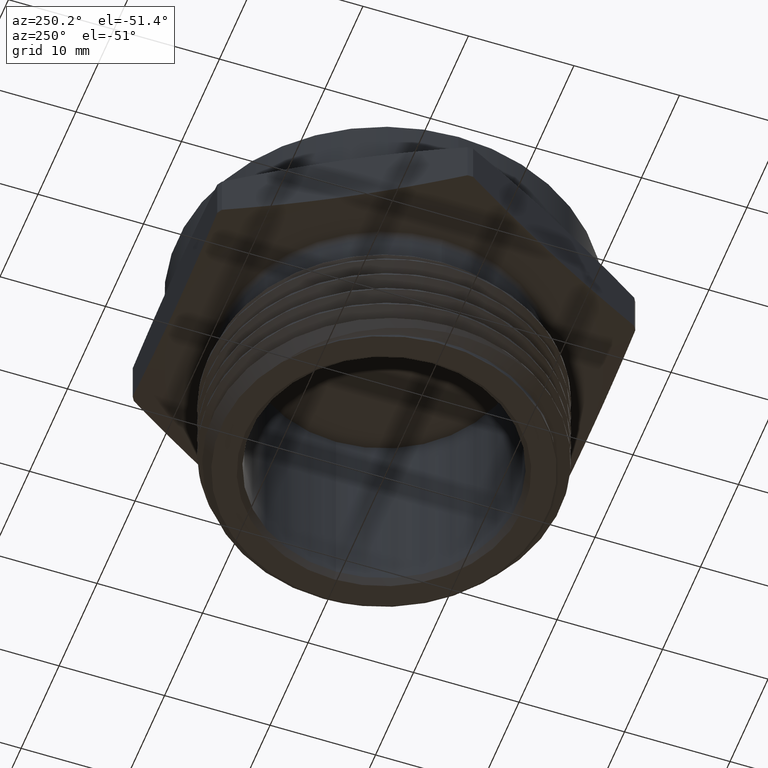
[diagram: clean part render]
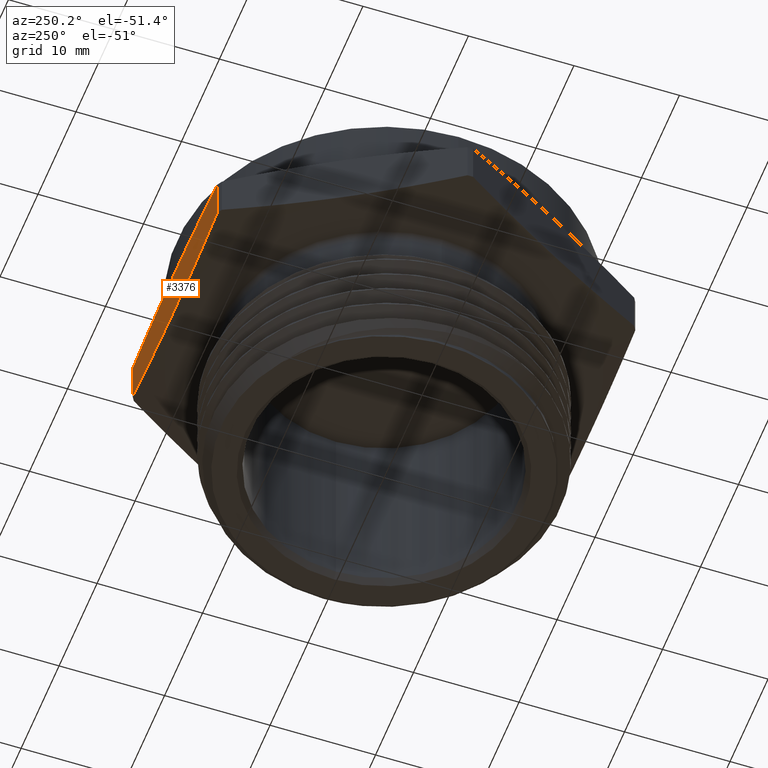
[diagram: same view with one face highlighted and labeled with its STEP entity id]
A machine part, auxiliary view. The second image highlights one B-rep face of the part: STEP entity #3376.
In plain terms, the highlighted planar face has unit normal (-0, -1, 0).
Its self-contained STEP definition (entity closure, byte-faithful):
#702 = CARTESIAN_POINT ( 'NONE',  ( -0.4382099987001327700, 0.7799999999999999200, 5.366524722624820400E-017 ) ) ;
#711 = DIRECTION ( 'NONE',  ( -1.224646799147349800E-016, -0.0000000000000000000, -1.000000000000000000 ) ) ;
#712 = CARTESIAN_POINT ( 'NONE',  ( 0.4382099987001330500, 0.7799999999999999200, -5.366524722624820400E-017 ) ) ;
#714 = DIRECTION ( 'NONE',  ( 1.224646799147349800E-016, 0.0000000000000000000, 1.000000000000000000 ) ) ;
#936 = EDGE_LOOP ( 'NONE', ( #1095, #1096, #1097, #1098 ) ) ;
#1095 = ORIENTED_EDGE ( 'NONE', *, *, #1282, .F. ) ;
#1096 = ORIENTED_EDGE ( 'NONE', *, *, #1554, .F. ) ;
#1097 = ORIENTED_EDGE ( 'NONE', *, *, #1283, .F. ) ;
#1098 = ORIENTED_EDGE ( 'NONE', *, *, #1544, .F. ) ;
#1226 = B_SPLINE_CURVE_WITH_KNOTS ( 'NONE', 3,
 ( #2809, #2804, #2805, #2810, #2811, #2812, #2813, #2814, #2815, #2816 ),
 .UNSPECIFIED., .F., .F.,
 ( 4, 2, 2, 2, 4 ),
 ( 0.01929389795571095900, 0.02488130289523789900, 0.03046870783476484200, 0.03605611277429178500, 0.04164351771381872400 ),
 .UNSPECIFIED. ) ;
#1282 = EDGE_CURVE ( 'NONE', #3316, #1590, #2433, .T. ) ;
#1283 = EDGE_CURVE ( 'NONE', #1638, #1629, #2437, .T. ) ;
#1430 = AXIS2_PLACEMENT_3D ( 'NONE', #2075, #2080, #2081 ) ;
#1469 = B_SPLINE_CURVE_WITH_KNOTS ( 'NONE', 3,
 ( #2856, #2851, #2852, #2857, #2858, #2859, #2860, #2861, #2862, #2863 ),
 .UNSPECIFIED., .F., .F.,
 ( 4, 2, 2, 2, 4 ),
 ( 0.04354443558514912300, 0.04912637471211399300, 0.05470831383907886300, 0.06029025296604372700, 0.06587219209300859700 ),
 .UNSPECIFIED. ) ;
#1544 = EDGE_CURVE ( 'NONE', #1590, #1638, #1226, .T. ) ;
#1554 = EDGE_CURVE ( 'NONE', #1629, #3316, #1469, .T. ) ;
#1590 = VERTEX_POINT ( 'NONE', #2209 ) ;
#1629 = VERTEX_POINT ( 'NONE', #2245 ) ;
#1638 = VERTEX_POINT ( 'NONE', #2252 ) ;
#2074 = PLANE ( 'NONE',  #1430 ) ;
#2075 = CARTESIAN_POINT ( 'NONE',  ( 0.4503332099679080400, 0.7799999999999999200, 0.2099999999999999900 ) ) ;
#2080 = DIRECTION ( 'NONE',  ( -1.516570360122308400E-016, -1.000000000000000000, 0.0000000000000000000 ) ) ;
#2081 = DIRECTION ( 'NONE',  ( 1.000000000000000000, -1.516570360122308400E-016, 0.0000000000000000000 ) ) ;
#2209 = CARTESIAN_POINT ( 'NONE',  ( -0.4382099987001327700, 0.7799999999999999200, 0.02596727417309329200 ) ) ;
#2245 = CARTESIAN_POINT ( 'NONE',  ( 0.4382099987001329400, 0.7799999999999996900, 0.1840327258269069100 ) ) ;
#2252 = CARTESIAN_POINT ( 'NONE',  ( 0.4382099987001330500, 0.7799999999999999200, 0.02596727417309312500 ) ) ;
#2305 = CARTESIAN_POINT ( 'NONE',  ( -0.4382099987001327700, 0.7799999999999999200, 0.1840327258269070500 ) ) ;
#2433 = LINE ( 'NONE', #702, #2438 ) ;
#2437 = LINE ( 'NONE', #712, #2440 ) ;
#2438 = VECTOR ( 'NONE', #711, 39.37007874015748100 ) ;
#2440 = VECTOR ( 'NONE', #714, 39.37007874015748100 ) ;
#2645 = FACE_OUTER_BOUND ( 'NONE', #936, .T. ) ;
#2804 = CARTESIAN_POINT ( 'NONE',  ( -0.3652255891295629900, 0.7799999999999999200, 0.01836881103430091900 ) ) ;
#2805 = CARTESIAN_POINT ( 'NONE',  ( -0.2919696020277488500, 0.7800000000000001400, 0.01219468645310546300 ) ) ;
#2809 = CARTESIAN_POINT ( 'NONE',  ( -0.4382099987001327700, 0.7799999999999999200, 0.02596727417309329200 ) ) ;
#2810 = CARTESIAN_POINT ( 'NONE',  ( -0.1456834458092452800, 0.7799999999999999200, 0.003795611600883781100 ) ) ;
#2811 = CARTESIAN_POINT ( 'NONE',  ( -0.07258498959213809100, 0.7799999999999999200, 0.001584973661191292600 ) ) ;
#2812 = CARTESIAN_POINT ( 'NONE',  ( 0.07351231529379935500, 0.7799999999999999200, 0.001603433348595100100 ) ) ;
#2813 = CARTESIAN_POINT ( 'NONE',  ( 0.1465111793437917900, 0.7799999999999999200, 0.003831845402220127800 ) ) ;
#2814 = CARTESIAN_POINT ( 'NONE',  ( 0.2924204378380557700, 0.7799999999999999200, 0.01223196157811731900 ) ) ;
#2815 = CARTESIAN_POINT ( 'NONE',  ( 0.3653313671894616300, 0.7799999999999999200, 0.01837982366965344000 ) ) ;
#2816 = CARTESIAN_POINT ( 'NONE',  ( 0.4382099987001330500, 0.7799999999999999200, 0.02596727417309312500 ) ) ;
#2851 = CARTESIAN_POINT ( 'NONE',  ( 0.3653313671894612400, 0.7800000000000000300, 0.1916201763303467300 ) ) ;
#2852 = CARTESIAN_POINT ( 'NONE',  ( 0.2924204378380556000, 0.7799999999999999200, 0.1977680384218828400 ) ) ;
#2856 = CARTESIAN_POINT ( 'NONE',  ( 0.4382099987001329400, 0.7799999999999996900, 0.1840327258269069100 ) ) ;
#2857 = CARTESIAN_POINT ( 'NONE',  ( 0.1465111793437916800, 0.7799999999999999200, 0.2061681545977800100 ) ) ;
#2858 = CARTESIAN_POINT ( 'NONE',  ( 0.07351231529379950700, 0.7799999999999996900, 0.2083965666514050200 ) ) ;
#2859 = CARTESIAN_POINT ( 'NONE',  ( -0.07258498959213777200, 0.7799999999999996900, 0.2084150263388088700 ) ) ;
#2860 = CARTESIAN_POINT ( 'NONE',  ( -0.1456834458092450800, 0.7800000000000000300, 0.2062043883991165100 ) ) ;
#2861 = CARTESIAN_POINT ( 'NONE',  ( -0.2919696020277484100, 0.7800000000000000300, 0.1978053135468948700 ) ) ;
#2862 = CARTESIAN_POINT ( 'NONE',  ( -0.3652255891295628200, 0.7800000000000000300, 0.1916311889656994200 ) ) ;
#2863 = CARTESIAN_POINT ( 'NONE',  ( -0.4382099987001327700, 0.7799999999999999200, 0.1840327258269070500 ) ) ;
#3316 = VERTEX_POINT ( 'NONE', #2305 ) ;
#3376 = ADVANCED_FACE ( 'NONE', ( #2645 ), #2074, .F. ) ;